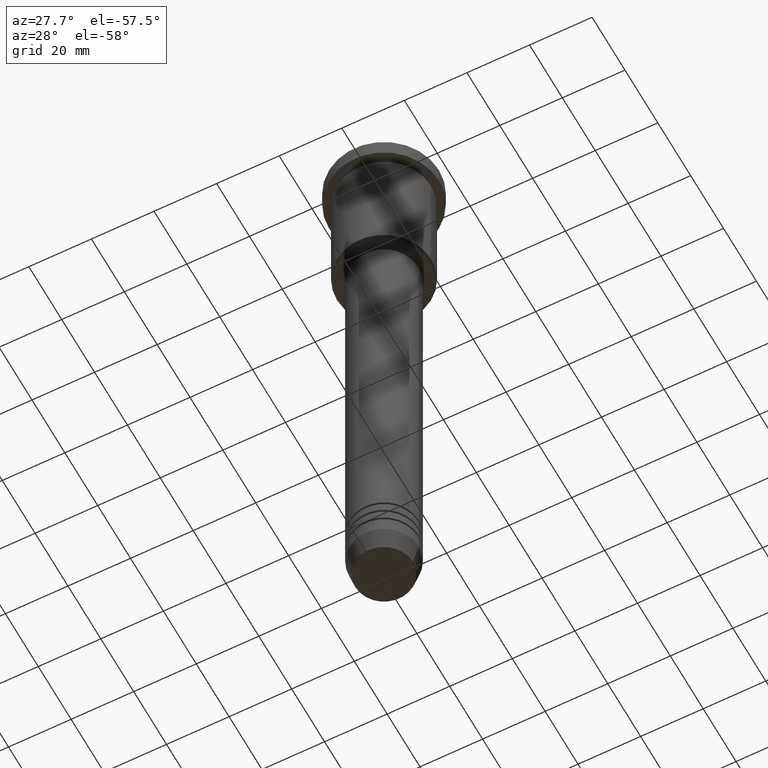
[diagram: clean part render]
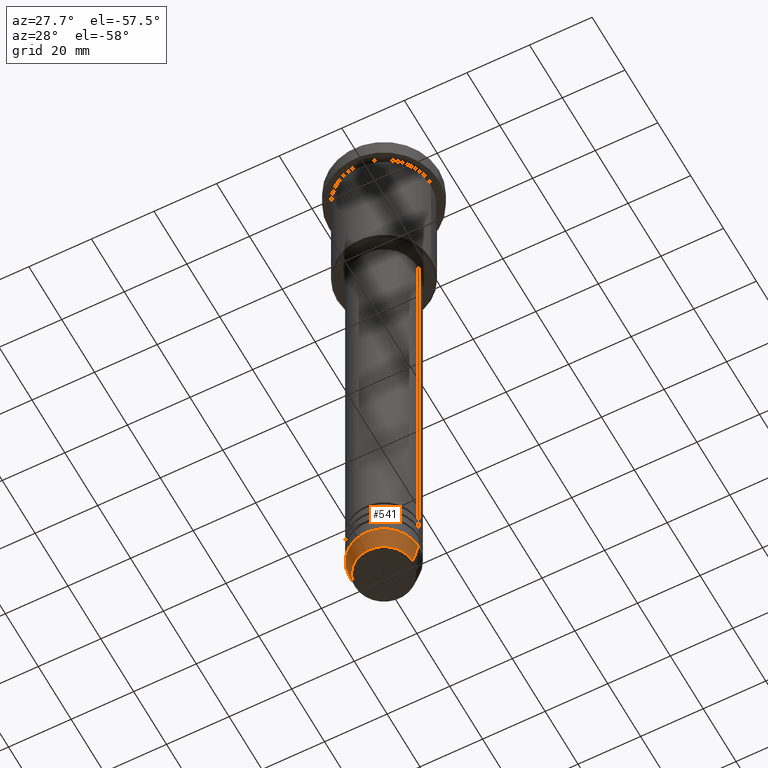
[diagram: same view with one face highlighted and labeled with its STEP entity id]
A machine part, auxiliary view. The second image highlights one B-rep face of the part: STEP entity #541.
In plain terms, the highlighted conical surface has half-angle 15 deg.
Its self-contained STEP definition (entity closure, byte-faithful):
#18 = DIRECTION ( 'NONE',  ( 0.2588190451025213501, 0.000000000000000000, 0.9659258262890680902 ) ) ;
#118 = AXIS2_PLACEMENT_3D ( 'NONE', #408, #335, #235 ) ;
#120 = CARTESIAN_POINT ( 'NONE',  ( -9.223655072137189492, 1.238341722557647202E-15, -200.6294095225512706 ) ) ;
#167 = DIRECTION ( 'NONE',  ( -0.2588190451025213501, 3.169619151431772337E-17, 0.9659258262890680902 ) ) ;
#172 = LINE ( 'NONE', #1007, #1152 ) ;
#183 = CARTESIAN_POINT ( 'NONE',  ( 0.000000000000000000, 0.000000000000000000, -194.0000000000000000 ) ) ;
#185 = ORIENTED_EDGE ( 'NONE', *, *, #387, .F. ) ;
#196 = CARTESIAN_POINT ( 'NONE',  ( -11.00000000000000000, 1.347111479062088405E-15, -194.0000000000000000 ) ) ;
#235 = DIRECTION ( 'NONE',  ( 1.000000000000000000, 0.000000000000000000, 0.000000000000000000 ) ) ;
#264 = EDGE_CURVE ( 'NONE', #269, #952, #385, .T. ) ;
#269 = VERTEX_POINT ( 'NONE', #376 ) ;
#287 = FACE_OUTER_BOUND ( 'NONE', #975, .T. ) ;
#335 = DIRECTION ( 'NONE',  ( -0.000000000000000000, -0.000000000000000000, 1.000000000000000000 ) ) ;
#337 = VECTOR ( 'NONE', #18, 1000.000000000000000 ) ;
#352 = CIRCLE ( 'NONE', #637, 11.00000000000000000 ) ;
#359 = CARTESIAN_POINT ( 'NONE',  ( 11.00000000000000000, 0.000000000000000000, -194.0000000000000000 ) ) ;
#376 = CARTESIAN_POINT ( 'NONE',  ( 9.223655072137189492, 0.000000000000000000, -200.6294095225512706 ) ) ;
#385 = LINE ( 'NONE', #641, #337 ) ;
#387 = EDGE_CURVE ( 'NONE', #1005, #952, #352, .T. ) ;
#399 = EDGE_CURVE ( 'NONE', #542, #269, #665, .T. ) ;
#408 = CARTESIAN_POINT ( 'NONE',  ( 0.000000000000000000, 0.000000000000000000, -200.6294095225512706 ) ) ;
#420 = ORIENTED_EDGE ( 'NONE', *, *, #264, .T. ) ;
#465 = ORIENTED_EDGE ( 'NONE', *, *, #949, .F. ) ;
#470 = DIRECTION ( 'NONE',  ( 1.000000000000000000, 0.000000000000000000, 0.000000000000000000 ) ) ;
#499 = ORIENTED_EDGE ( 'NONE', *, *, #399, .T. ) ;
#532 = AXIS2_PLACEMENT_3D ( 'NONE', #183, #661, #470 ) ;
#541 = ADVANCED_FACE ( 'NONE', ( #287 ), #922, .T. ) ;
#542 = VERTEX_POINT ( 'NONE', #120 ) ;
#637 = AXIS2_PLACEMENT_3D ( 'NONE', #979, #896, #986 ) ;
#641 = CARTESIAN_POINT ( 'NONE',  ( 11.00000000000000000, 0.000000000000000000, -194.0000000000000000 ) ) ;
#661 = DIRECTION ( 'NONE',  ( -0.000000000000000000, -0.000000000000000000, 1.000000000000000000 ) ) ;
#665 = CIRCLE ( 'NONE', #118, 9.223655072137189492 ) ;
#896 = DIRECTION ( 'NONE',  ( -0.000000000000000000, -0.000000000000000000, 1.000000000000000000 ) ) ;
#922 = CONICAL_SURFACE ( 'NONE', #532, 11.00000000000000000, 0.2617993877991500740 ) ;
#949 = EDGE_CURVE ( 'NONE', #542, #1005, #172, .T. ) ;
#952 = VERTEX_POINT ( 'NONE', #359 ) ;
#975 = EDGE_LOOP ( 'NONE', ( #465, #499, #420, #185 ) ) ;
#979 = CARTESIAN_POINT ( 'NONE',  ( 0.000000000000000000, 0.000000000000000000, -194.0000000000000000 ) ) ;
#986 = DIRECTION ( 'NONE',  ( 1.000000000000000000, 0.000000000000000000, 0.000000000000000000 ) ) ;
#1005 = VERTEX_POINT ( 'NONE', #196 ) ;
#1007 = CARTESIAN_POINT ( 'NONE',  ( -11.00000000000000000, 1.347111479062088405E-15, -194.0000000000000000 ) ) ;
#1152 = VECTOR ( 'NONE', #167, 1000.000000000000000 ) ;